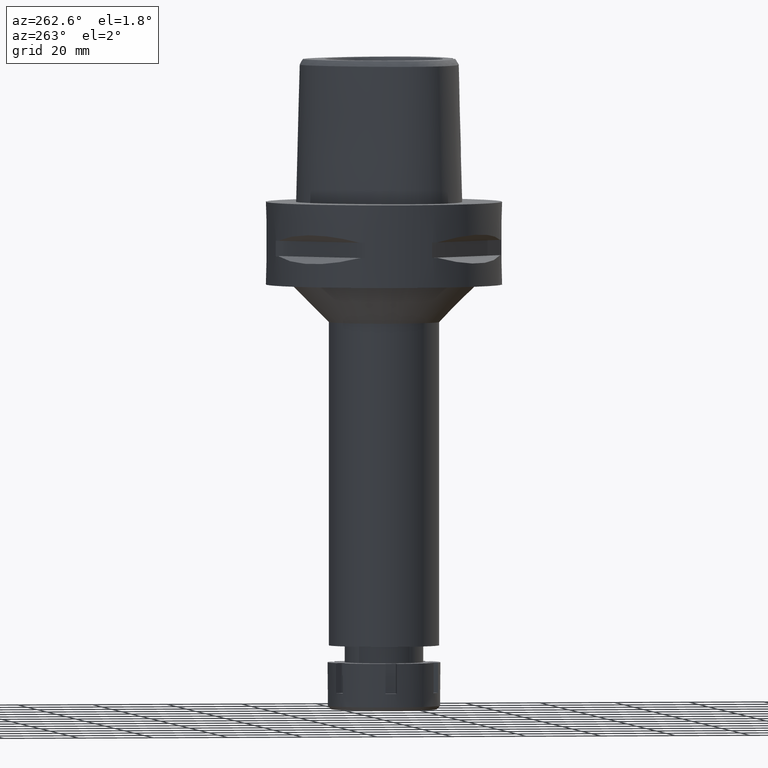
[diagram: clean part render]
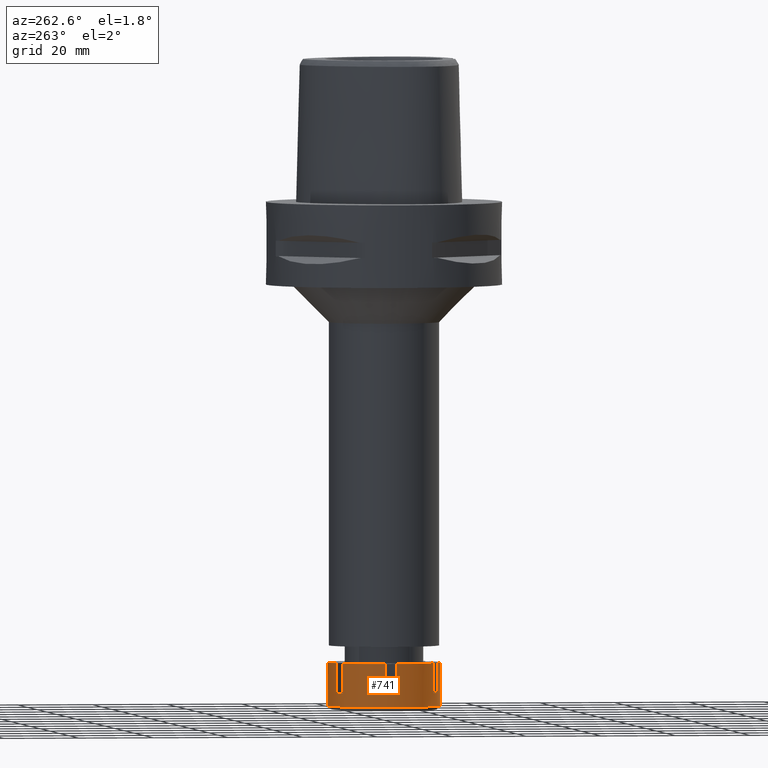
[diagram: same view with one face highlighted and labeled with its STEP entity id]
A machine part, auxiliary view. The second image highlights one B-rep face of the part: STEP entity #741.
In plain terms, the highlighted cylindrical surface (partial cylindrical patch) has radius 15 mm, axis along (0, 0, -1).
Its self-contained STEP definition (entity closure, byte-faithful):
#10 = CARTESIAN_POINT ( 'NONE',  ( 0.0000000000000000000, -15.00000000000000000, 0.0000000000000000000 ) ) ;
#36 = CIRCLE ( 'NONE', #1140, 15.00000000000000000 ) ;
#54 = LINE ( 'NONE', #3145, #323 ) ;
#103 = DIRECTION ( 'NONE',  ( 0.0000000000000000000, 0.0000000000000000000, -1.000000000000000000 ) ) ;
#106 = CARTESIAN_POINT ( 'NONE',  ( 0.0000000000000000000, 15.00000000000000000, -11.59999999999999964 ) ) ;
#138 = CARTESIAN_POINT ( 'NONE',  ( -14.92481155659999992, 1.500000000000000000, -8.000000000000000000 ) ) ;
#174 = CARTESIAN_POINT ( 'NONE',  ( -14.92481155659999992, 1.500000000000000000, 0.0000000000000000000 ) ) ;
#221 = CARTESIAN_POINT ( 'NONE',  ( 0.0000000000000000000, 0.0000000000000000000, 0.0000000000000000000 ) ) ;
#226 = ORIENTED_EDGE ( 'NONE', *, *, #5365, .F. ) ;
#270 = EDGE_CURVE ( 'NONE', #3206, #2575, #2880, .T. ) ;
#287 = DIRECTION ( 'NONE',  ( 0.0000000000000000000, 0.0000000000000000000, 1.000000000000000000 ) ) ;
#289 = ORIENTED_EDGE ( 'NONE', *, *, #5089, .T. ) ;
#323 = VECTOR ( 'NONE', #1786, 1000.000000000000000 ) ;
#336 = DIRECTION ( 'NONE',  ( -0.9949874371066197432, -0.1000000000000019623, 0.0000000000000000000 ) ) ;
#397 = ORIENTED_EDGE ( 'NONE', *, *, #2799, .T. ) ;
#407 = ORIENTED_EDGE ( 'NONE', *, *, #1557, .T. ) ;
#417 = AXIS2_PLACEMENT_3D ( 'NONE', #2991, #3358, #1220 ) ;
#448 = CIRCLE ( 'NONE', #726, 15.00000000000000533 ) ;
#465 = ORIENTED_EDGE ( 'NONE', *, *, #3319, .T. ) ;
#569 = CARTESIAN_POINT ( 'NONE',  ( -14.92481155659999992, -1.500000000000000000, 0.0000000000000000000 ) ) ;
#590 = AXIS2_PLACEMENT_3D ( 'NONE', #869, #5086, #3419 ) ;
#666 = DIRECTION ( 'NONE',  ( 0.0000000000000000000, 0.0000000000000000000, -1.000000000000000000 ) ) ;
#693 = CARTESIAN_POINT ( 'NONE',  ( -6.163367672623000004, -13.67526595470999951, -8.000000000000000000 ) ) ;
#701 = VERTEX_POINT ( 'NONE', #106 ) ;
#707 = DIRECTION ( 'NONE',  ( 0.0000000000000000000, 0.0000000000000000000, -1.000000000000000000 ) ) ;
#726 = AXIS2_PLACEMENT_3D ( 'NONE', #4642, #786, #2419 ) ;
#741 = ADVANCED_FACE ( 'NONE', ( #2719 ), #4436, .T. ) ;
#778 = VERTEX_POINT ( 'NONE', #1453 ) ;
#786 = DIRECTION ( 'NONE',  ( 0.0000000000000000000, 0.0000000000000000000, -1.000000000000000000 ) ) ;
#841 = EDGE_CURVE ( 'NONE', #3134, #4376, #2868, .T. ) ;
#869 = CARTESIAN_POINT ( 'NONE',  ( 0.0000000000000000000, 0.0000000000000000000, -8.000000000000000000 ) ) ;
#903 = LINE ( 'NONE', #2146, #1497 ) ;
#933 = ORIENTED_EDGE ( 'NONE', *, *, #2558, .T. ) ;
#946 = VECTOR ( 'NONE', #3186, 1000.000000000000000 ) ;
#1140 = AXIS2_PLACEMENT_3D ( 'NONE', #2236, #103, #1839 ) ;
#1147 = AXIS2_PLACEMENT_3D ( 'NONE', #2970, #4653, #336 ) ;
#1186 = DIRECTION ( 'NONE',  ( 0.0000000000000000000, 0.0000000000000000000, -1.000000000000000000 ) ) ;
#1220 = DIRECTION ( 'NONE',  ( -0.4108911781748959546, -0.9116843969806908143, 0.0000000000000000000 ) ) ;
#1240 = ORIENTED_EDGE ( 'NONE', *, *, #5430, .F. ) ;
#1338 = VERTEX_POINT ( 'NONE', #2568 ) ;
#1362 = LINE ( 'NONE', #5162, #4804 ) ;
#1446 = ORIENTED_EDGE ( 'NONE', *, *, #270, .F. ) ;
#1453 = CARTESIAN_POINT ( 'NONE',  ( -8.761443883976001601, 12.17526595470999951, 0.0000000000000000000 ) ) ;
#1460 = CARTESIAN_POINT ( 'NONE',  ( 0.0000000000000000000, 15.00000000000000000, 0.0000000000000000000 ) ) ;
#1483 = VERTEX_POINT ( 'NONE', #138 ) ;
#1497 = VECTOR ( 'NONE', #3972, 1000.000000000000000 ) ;
#1557 = EDGE_CURVE ( 'NONE', #701, #1565, #3876, .T. ) ;
#1565 = VERTEX_POINT ( 'NONE', #2081 ) ;
#1574 = VERTEX_POINT ( 'NONE', #5080 ) ;
#1665 = EDGE_CURVE ( 'NONE', #3206, #1338, #4049, .T. ) ;
#1695 = VECTOR ( 'NONE', #3057, 1000.000000000000000 ) ;
#1721 = DIRECTION ( 'NONE',  ( 0.0000000000000000000, 0.0000000000000000000, -1.000000000000000000 ) ) ;
#1755 = EDGE_CURVE ( 'NONE', #5570, #778, #448, .T. ) ;
#1763 = CARTESIAN_POINT ( 'NONE',  ( -6.163367672623000004, -13.67526595470999951, -8.000000000000000000 ) ) ;
#1786 = DIRECTION ( 'NONE',  ( 0.0000000000000000000, 0.0000000000000000000, -1.000000000000000000 ) ) ;
#1811 = CARTESIAN_POINT ( 'NONE',  ( -8.761443883976001601, 12.17526595470999951, -8.000000000000000000 ) ) ;
#1825 = CARTESIAN_POINT ( 'NONE',  ( 0.0000000000000000000, -15.00000000000000000, 0.0000000000000000000 ) ) ;
#1839 = DIRECTION ( 'NONE',  ( 0.0000000000000000000, -1.000000000000000000, 0.0000000000000000000 ) ) ;
#1856 = CIRCLE ( 'NONE', #417, 15.00000000000000178 ) ;
#1903 = DIRECTION ( 'NONE',  ( 0.0000000000000000000, 0.0000000000000000000, -1.000000000000000000 ) ) ;
#1913 = CARTESIAN_POINT ( 'NONE',  ( -6.163367672621999915, 13.67526595470999951, -8.000000000000000000 ) ) ;
#1961 = DIRECTION ( 'NONE',  ( -0.5840962589317197917, -0.8116843969807286951, 0.0000000000000000000 ) ) ;
#1964 = CARTESIAN_POINT ( 'NONE',  ( 0.0000000000000000000, 0.0000000000000000000, -11.59999999999999964 ) ) ;
#1967 = ORIENTED_EDGE ( 'NONE', *, *, #1755, .T. ) ;
#2022 = CARTESIAN_POINT ( 'NONE',  ( 0.0000000000000000000, 0.0000000000000000000, 0.0000000000000000000 ) ) ;
#2081 = CARTESIAN_POINT ( 'NONE',  ( 0.0000000000000000000, -15.00000000000000000, -11.59999999999999964 ) ) ;
#2100 = EDGE_CURVE ( 'NONE', #2647, #1574, #54, .T. ) ;
#2146 = CARTESIAN_POINT ( 'NONE',  ( -8.761443883976001601, 12.17526595470999951, -8.000000000000000000 ) ) ;
#2174 = EDGE_CURVE ( 'NONE', #5570, #1483, #1362, .T. ) ;
#2194 = CARTESIAN_POINT ( 'NONE',  ( -14.92481155659999992, -1.500000000000000000, -8.000000000000000000 ) ) ;
#2207 = ORIENTED_EDGE ( 'NONE', *, *, #2100, .F. ) ;
#2236 = CARTESIAN_POINT ( 'NONE',  ( 0.0000000000000000000, 0.0000000000000000000, 0.0000000000000000000 ) ) ;
#2246 = EDGE_CURVE ( 'NONE', #5415, #4376, #36, .T. ) ;
#2265 = VERTEX_POINT ( 'NONE', #1811 ) ;
#2338 = AXIS2_PLACEMENT_3D ( 'NONE', #3986, #1903, #5215 ) ;
#2419 = DIRECTION ( 'NONE',  ( -0.9949874371066197432, 0.1000000000000019623, 0.0000000000000000000 ) ) ;
#2495 = CIRCLE ( 'NONE', #1147, 15.00000000000000533 ) ;
#2558 = EDGE_CURVE ( 'NONE', #1338, #701, #4054, .T. ) ;
#2568 = CARTESIAN_POINT ( 'NONE',  ( 0.0000000000000000000, 15.00000000000000000, 0.0000000000000000000 ) ) ;
#2572 = CARTESIAN_POINT ( 'NONE',  ( -6.163367672623000004, -13.67526595470999951, 0.0000000000000000000 ) ) ;
#2575 = VERTEX_POINT ( 'NONE', #1913 ) ;
#2591 = ORIENTED_EDGE ( 'NONE', *, *, #2896, .T. ) ;
#2647 = VERTEX_POINT ( 'NONE', #5333 ) ;
#2711 = ORIENTED_EDGE ( 'NONE', *, *, #3998, .F. ) ;
#2719 = FACE_OUTER_BOUND ( 'NONE', #2932, .T. ) ;
#2760 = VECTOR ( 'NONE', #1721, 1000.000000000000000 ) ;
#2761 = CIRCLE ( 'NONE', #3220, 15.00000000000000355 ) ;
#2799 = EDGE_CURVE ( 'NONE', #2265, #2575, #5258, .T. ) ;
#2818 = CARTESIAN_POINT ( 'NONE',  ( -6.163367672621999915, 13.67526595470999951, 0.0000000000000000000 ) ) ;
#2868 = LINE ( 'NONE', #693, #2888 ) ;
#2872 = DIRECTION ( 'NONE',  ( 0.0000000000000000000, 1.000000000000000000, 0.0000000000000000000 ) ) ;
#2880 = LINE ( 'NONE', #2818, #4757 ) ;
#2888 = VECTOR ( 'NONE', #287, 1000.000000000000000 ) ;
#2896 = EDGE_CURVE ( 'NONE', #3134, #1574, #1856, .T. ) ;
#2932 = EDGE_LOOP ( 'NONE', ( #1446, #4187, #933, #407, #1240, #5234, #5192, #2591, #2207, #465, #2711, #289, #5051, #1967, #226, #397 ) ) ;
#2970 = CARTESIAN_POINT ( 'NONE',  ( 0.0000000000000000000, 0.0000000000000000000, -8.000000000000000000 ) ) ;
#2991 = CARTESIAN_POINT ( 'NONE',  ( 0.0000000000000000000, 0.0000000000000000000, -8.000000000000000000 ) ) ;
#3036 = DIRECTION ( 'NONE',  ( 0.0000000000000000000, 0.0000000000000000000, -1.000000000000000000 ) ) ;
#3057 = DIRECTION ( 'NONE',  ( 0.0000000000000000000, 0.0000000000000000000, 1.000000000000000000 ) ) ;
#3134 = VERTEX_POINT ( 'NONE', #1763 ) ;
#3144 = CARTESIAN_POINT ( 'NONE',  ( -14.92481155659999992, -1.500000000000000000, -8.000000000000000000 ) ) ;
#3145 = CARTESIAN_POINT ( 'NONE',  ( -8.761443883976001601, -12.17526595470999951, 0.0000000000000000000 ) ) ;
#3186 = DIRECTION ( 'NONE',  ( 0.0000000000000000000, 0.0000000000000000000, -1.000000000000000000 ) ) ;
#3206 = VERTEX_POINT ( 'NONE', #5350 ) ;
#3220 = AXIS2_PLACEMENT_3D ( 'NONE', #221, #1186, #1961 ) ;
#3319 = EDGE_CURVE ( 'NONE', #2647, #4101, #2761, .T. ) ;
#3358 = DIRECTION ( 'NONE',  ( 0.0000000000000000000, 0.0000000000000000000, -1.000000000000000000 ) ) ;
#3419 = DIRECTION ( 'NONE',  ( -0.5840962589317860720, 0.8116843969806811776, 0.0000000000000000000 ) ) ;
#3554 = LINE ( 'NONE', #10, #2760 ) ;
#3751 = DIRECTION ( 'NONE',  ( -0.4108911781748131320, 0.9116843969807282289, 0.0000000000000000000 ) ) ;
#3876 = CIRCLE ( 'NONE', #4238, 15.00000000000000000 ) ;
#3972 = DIRECTION ( 'NONE',  ( 0.0000000000000000000, 0.0000000000000000000, 1.000000000000000000 ) ) ;
#3986 = CARTESIAN_POINT ( 'NONE',  ( 0.0000000000000000000, 0.0000000000000000000, 0.0000000000000000000 ) ) ;
#3998 = EDGE_CURVE ( 'NONE', #4714, #4101, #4788, .T. ) ;
#4049 = CIRCLE ( 'NONE', #4150, 14.99999999999999645 ) ;
#4054 = LINE ( 'NONE', #1460, #946 ) ;
#4101 = VERTEX_POINT ( 'NONE', #569 ) ;
#4150 = AXIS2_PLACEMENT_3D ( 'NONE', #2022, #666, #3751 ) ;
#4187 = ORIENTED_EDGE ( 'NONE', *, *, #1665, .T. ) ;
#4238 = AXIS2_PLACEMENT_3D ( 'NONE', #1964, #4526, #2872 ) ;
#4376 = VERTEX_POINT ( 'NONE', #2572 ) ;
#4436 = CYLINDRICAL_SURFACE ( 'NONE', #2338, 15.00000000000000000 ) ;
#4526 = DIRECTION ( 'NONE',  ( 0.0000000000000000000, 0.0000000000000000000, 1.000000000000000000 ) ) ;
#4642 = CARTESIAN_POINT ( 'NONE',  ( 0.0000000000000000000, 0.0000000000000000000, 0.0000000000000000000 ) ) ;
#4653 = DIRECTION ( 'NONE',  ( 0.0000000000000000000, 0.0000000000000000000, -1.000000000000000000 ) ) ;
#4714 = VERTEX_POINT ( 'NONE', #2194 ) ;
#4757 = VECTOR ( 'NONE', #707, 1000.000000000000000 ) ;
#4788 = LINE ( 'NONE', #3144, #1695 ) ;
#4804 = VECTOR ( 'NONE', #3036, 1000.000000000000000 ) ;
#5051 = ORIENTED_EDGE ( 'NONE', *, *, #2174, .F. ) ;
#5080 = CARTESIAN_POINT ( 'NONE',  ( -8.761443883976001601, -12.17526595470999951, -8.000000000000000000 ) ) ;
#5086 = DIRECTION ( 'NONE',  ( 0.0000000000000000000, 0.0000000000000000000, -1.000000000000000000 ) ) ;
#5089 = EDGE_CURVE ( 'NONE', #4714, #1483, #2495, .T. ) ;
#5162 = CARTESIAN_POINT ( 'NONE',  ( -14.92481155659999992, 1.500000000000000000, 0.0000000000000000000 ) ) ;
#5192 = ORIENTED_EDGE ( 'NONE', *, *, #841, .F. ) ;
#5215 = DIRECTION ( 'NONE',  ( 0.0000000000000000000, -1.000000000000000000, 0.0000000000000000000 ) ) ;
#5234 = ORIENTED_EDGE ( 'NONE', *, *, #2246, .T. ) ;
#5258 = CIRCLE ( 'NONE', #590, 14.99999999999999645 ) ;
#5333 = CARTESIAN_POINT ( 'NONE',  ( -8.761443883976001601, -12.17526595470999951, 0.0000000000000000000 ) ) ;
#5350 = CARTESIAN_POINT ( 'NONE',  ( -6.163367672621999915, 13.67526595470999951, 0.0000000000000000000 ) ) ;
#5365 = EDGE_CURVE ( 'NONE', #2265, #778, #903, .T. ) ;
#5415 = VERTEX_POINT ( 'NONE', #1825 ) ;
#5430 = EDGE_CURVE ( 'NONE', #5415, #1565, #3554, .T. ) ;
#5570 = VERTEX_POINT ( 'NONE', #174 ) ;